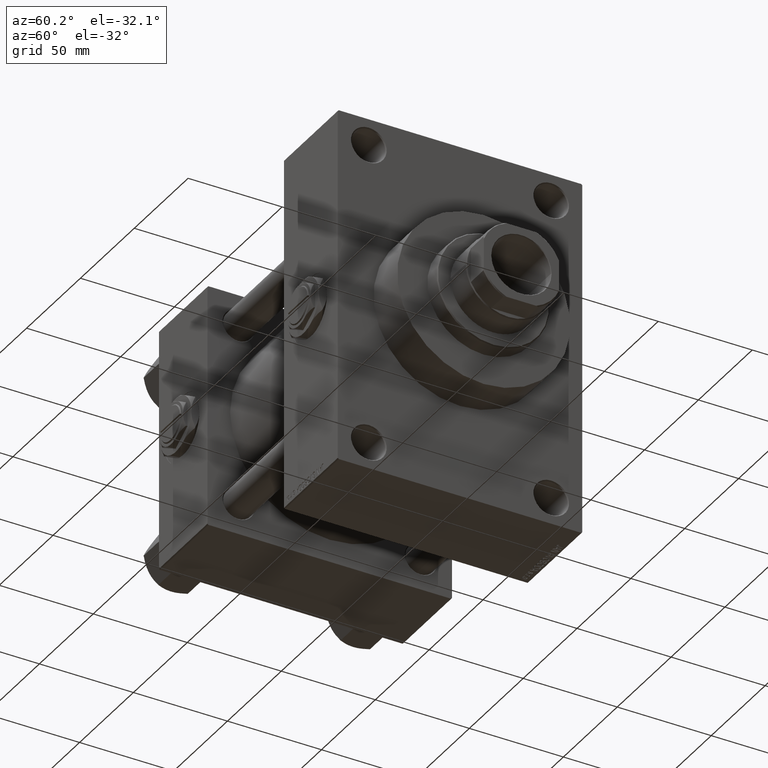
[diagram: clean part render]
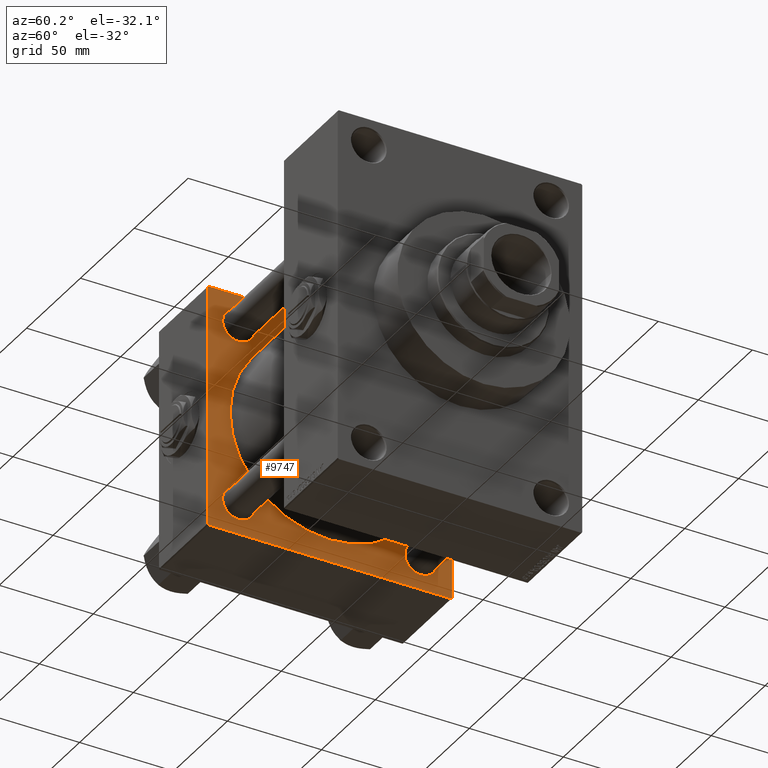
[diagram: same view with one face highlighted and labeled with its STEP entity id]
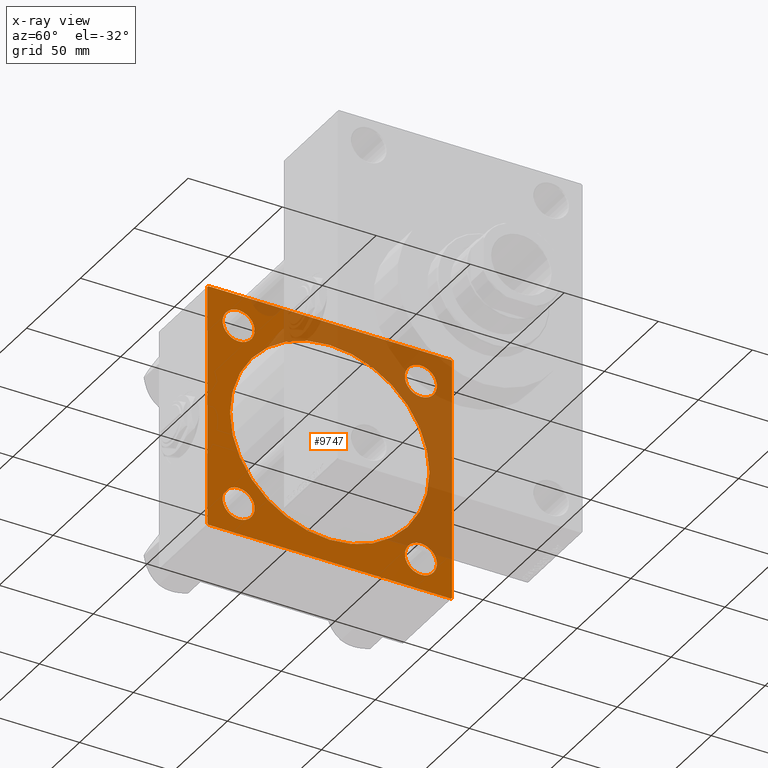
[diagram: x-ray of the same camera — body ghosted, the highlighted face saturated]
A machine part, auxiliary view. The second image highlights one B-rep face of the part: STEP entity #9747.
The next image is the same camera in x-ray: the body ghosted, the highlighted face saturated — about 42% of this face is hidden behind the body in this view.
In plain terms, the highlighted planar face has unit normal (-1, 0, 0).
Its self-contained STEP definition (entity closure, byte-faithful):
#68 = EDGE_LOOP ( 'NONE', ( #48559, #30694 ) ) ;
#267 = VECTOR ( 'NONE', #36901, 1000.000000000000114 ) ;
#706 = DIRECTION ( 'NONE',  ( 0.000000000000000000, -1.000000000000000000, -1.067522139062650425E-16 ) ) ;
#751 = VECTOR ( 'NONE', #706, 1000.000000000000000 ) ;
#847 = ORIENTED_EDGE ( 'NONE', *, *, #37595, .T. ) ;
#1075 = ORIENTED_EDGE ( 'NONE', *, *, #7280, .F. ) ;
#1376 = EDGE_CURVE ( 'NONE', #7370, #39609, #17095, .T. ) ;
#1531 = EDGE_LOOP ( 'NONE', ( #31114, #6490, #8621, #46389, #45648, #10969, #46787, #42049 ) ) ;
#1891 = CIRCLE ( 'NONE', #13938, 8.500000000000007105 ) ;
#2201 = CARTESIAN_POINT ( 'NONE',  ( 45.00000000000000000, -48.44999999999999574, 39.95000000000001705 ) ) ;
#2259 = CARTESIAN_POINT ( 'NONE',  ( 45.00000000000000000, 65.00000000000000000, 64.49999999999998579 ) ) ;
#2346 = VERTEX_POINT ( 'NONE', #5521 ) ;
#2987 = DIRECTION ( 'NONE',  ( 0.000000000000000000, 0.000000000000000000, 1.000000000000000000 ) ) ;
#3383 = CIRCLE ( 'NONE', #9057, 8.500000000000007105 ) ;
#4702 = DIRECTION ( 'NONE',  ( -1.000000000000000000, 0.000000000000000000, -0.000000000000000000 ) ) ;
#4882 = CARTESIAN_POINT ( 'NONE',  ( 45.00000000000000000, 48.45000000000000995, -39.95000000000000284 ) ) ;
#4936 = VERTEX_POINT ( 'NONE', #45603 ) ;
#5495 = EDGE_CURVE ( 'NONE', #28341, #31999, #3383, .T. ) ;
#5521 = CARTESIAN_POINT ( 'NONE',  ( 45.00000000000000000, 64.49999999999997158, -64.99999999999998579 ) ) ;
#5992 = LINE ( 'NONE', #14049, #44289 ) ;
#6455 = CARTESIAN_POINT ( 'NONE',  ( 45.00000000000000000, 48.45000000000000995, -56.95000000000002416 ) ) ;
#6490 = ORIENTED_EDGE ( 'NONE', *, *, #47140, .T. ) ;
#6652 = EDGE_CURVE ( 'NONE', #47131, #15026, #21118, .T. ) ;
#6764 = VECTOR ( 'NONE', #41480, 1000.000000000000000 ) ;
#7272 = CIRCLE ( 'NONE', #12146, 8.500000000000007105 ) ;
#7280 = EDGE_CURVE ( 'NONE', #15026, #47131, #36335, .T. ) ;
#7370 = VERTEX_POINT ( 'NONE', #30645 ) ;
#8260 = AXIS2_PLACEMENT_3D ( 'NONE', #41837, #13934, #45375 ) ;
#8621 = ORIENTED_EDGE ( 'NONE', *, *, #39358, .F. ) ;
#8928 = VERTEX_POINT ( 'NONE', #28559 ) ;
#9057 = AXIS2_PLACEMENT_3D ( 'NONE', #32373, #47710, #28589 ) ;
#9664 = CARTESIAN_POINT ( 'NONE',  ( 45.00000000000000000, 48.45000000000000995, 56.95000000000002416 ) ) ;
#9747 = ADVANCED_FACE ( 'NONE', ( #20768, #13466, #28806, #43918, #35890, #12733 ), #16508, .F. ) ;
#10969 = ORIENTED_EDGE ( 'NONE', *, *, #13918, .T. ) ;
#11187 = ORIENTED_EDGE ( 'NONE', *, *, #29451, .T. ) ;
#11302 = CARTESIAN_POINT ( 'NONE',  ( 45.00000000000000000, 48.45000000000000995, 48.45000000000001705 ) ) ;
#11663 = EDGE_LOOP ( 'NONE', ( #48670, #12356 ) ) ;
#11701 = CARTESIAN_POINT ( 'NONE',  ( 45.00000000000000000, -65.00000000000000000, 64.50000000000000000 ) ) ;
#11736 = AXIS2_PLACEMENT_3D ( 'NONE', #13988, #39923, #33113 ) ;
#11887 = CARTESIAN_POINT ( 'NONE',  ( 45.00000000000000000, 64.49999999999997158, 65.00000000000001421 ) ) ;
#11899 = EDGE_CURVE ( 'NONE', #31999, #28341, #40478, .T. ) ;
#12107 = CIRCLE ( 'NONE', #43477, 8.500000000000007105 ) ;
#12146 = AXIS2_PLACEMENT_3D ( 'NONE', #28941, #14100, #2987 ) ;
#12259 = CARTESIAN_POINT ( 'NONE',  ( 45.00000000000000000, -48.44999999999999574, -48.45000000000003126 ) ) ;
#12356 = ORIENTED_EDGE ( 'NONE', *, *, #5495, .T. ) ;
#12546 = CARTESIAN_POINT ( 'NONE',  ( 45.00000000000000000, 65.00000000000000000, -64.49999999999995737 ) ) ;
#12733 = FACE_OUTER_BOUND ( 'NONE', #1531, .T. ) ;
#13120 = VERTEX_POINT ( 'NONE', #4882 ) ;
#13466 = FACE_BOUND ( 'NONE', #32013, .T. ) ;
#13893 = VERTEX_POINT ( 'NONE', #14733 ) ;
#13918 = EDGE_CURVE ( 'NONE', #43117, #7370, #35119, .T. ) ;
#13934 = DIRECTION ( 'NONE',  ( 1.000000000000000000, -0.000000000000000000, 0.000000000000000000 ) ) ;
#13938 = AXIS2_PLACEMENT_3D ( 'NONE', #12259, #4702, #43712 ) ;
#13988 = CARTESIAN_POINT ( 'NONE',  ( 45.00000000000000000, 48.45000000000000995, 48.45000000000001705 ) ) ;
#14049 = CARTESIAN_POINT ( 'NONE',  ( 45.00000000000000000, 65.00000000000000000, 65.00000000000001421 ) ) ;
#14100 = DIRECTION ( 'NONE',  ( -1.000000000000000000, 0.000000000000000000, -0.000000000000000000 ) ) ;
#14402 = CARTESIAN_POINT ( 'NONE',  ( 45.00000000000000000, -48.44999999999999574, 48.45000000000003126 ) ) ;
#14482 = LINE ( 'NONE', #25047, #267 ) ;
#14733 = CARTESIAN_POINT ( 'NONE',  ( 45.00000000000000000, 48.45000000000000995, 39.95000000000000284 ) ) ;
#14825 = CARTESIAN_POINT ( 'NONE',  ( 45.00000000000000000, -48.44999999999999574, 56.95000000000003837 ) ) ;
#15026 = VERTEX_POINT ( 'NONE', #36848 ) ;
#15067 = VERTEX_POINT ( 'NONE', #9664 ) ;
#15426 = DIRECTION ( 'NONE',  ( -1.000000000000000000, 0.000000000000000000, -0.000000000000000000 ) ) ;
#15488 = VECTOR ( 'NONE', #31028, 1000.000000000000114 ) ;
#16028 = DIRECTION ( 'NONE',  ( 0.000000000000000000, 0.000000000000000000, 1.000000000000000000 ) ) ;
#16426 = LINE ( 'NONE', #11887, #15488 ) ;
#16508 = PLANE ( 'NONE',  #20330 ) ;
#16776 = AXIS2_PLACEMENT_3D ( 'NONE', #19197, #15426, #24455 ) ;
#17095 = LINE ( 'NONE', #36716, #24168 ) ;
#17485 = CARTESIAN_POINT ( 'NONE',  ( 45.00000000000000000, 0.000000000000000000, 0.000000000000000000 ) ) ;
#18607 = VERTEX_POINT ( 'NONE', #12546 ) ;
#18776 = AXIS2_PLACEMENT_3D ( 'NONE', #14402, #48614, #25963 ) ;
#19197 = CARTESIAN_POINT ( 'NONE',  ( 45.00000000000000000, 48.45000000000000995, -48.45000000000001705 ) ) ;
#19684 = DIRECTION ( 'NONE',  ( 0.000000000000000000, 0.000000000000000000, -1.000000000000000000 ) ) ;
#20330 = AXIS2_PLACEMENT_3D ( 'NONE', #17485, #36619, #32841 ) ;
#20626 = ORIENTED_EDGE ( 'NONE', *, *, #6652, .F. ) ;
#20703 = EDGE_CURVE ( 'NONE', #15067, #13893, #33543, .T. ) ;
#20768 = FACE_BOUND ( 'NONE', #25671, .T. ) ;
#21118 = CIRCLE ( 'NONE', #8260, 53.00000000000000711 ) ;
#23605 = LINE ( 'NONE', #31672, #751 ) ;
#23917 = VERTEX_POINT ( 'NONE', #42397 ) ;
#23991 = DIRECTION ( 'NONE',  ( 0.000000000000000000, -1.000000000000000000, -1.067522139062650425E-16 ) ) ;
#24168 = VECTOR ( 'NONE', #19684, 1000.000000000000000 ) ;
#24455 = DIRECTION ( 'NONE',  ( 0.000000000000000000, 0.000000000000000000, 1.000000000000000000 ) ) ;
#25047 = CARTESIAN_POINT ( 'NONE',  ( 45.00000000000000000, 65.00000000000000000, -64.49999999999995737 ) ) ;
#25126 = ORIENTED_EDGE ( 'NONE', *, *, #47096, .T. ) ;
#25499 = CIRCLE ( 'NONE', #41676, 8.500000000000007105 ) ;
#25671 = EDGE_LOOP ( 'NONE', ( #847, #25126 ) ) ;
#25963 = DIRECTION ( 'NONE',  ( 0.000000000000000000, 0.000000000000000000, 1.000000000000000000 ) ) ;
#26113 = CARTESIAN_POINT ( 'NONE',  ( 45.00000000000000000, -2.602085213965210642E-15, 0.000000000000000000 ) ) ;
#26333 = EDGE_CURVE ( 'NONE', #43906, #13120, #40081, .T. ) ;
#26622 = LINE ( 'NONE', #30154, #6764 ) ;
#27693 = VECTOR ( 'NONE', #35368, 1000.000000000000000 ) ;
#28341 = VERTEX_POINT ( 'NONE', #14825 ) ;
#28559 = CARTESIAN_POINT ( 'NONE',  ( 45.00000000000000000, 64.49999999999997158, 65.00000000000001421 ) ) ;
#28589 = DIRECTION ( 'NONE',  ( 0.000000000000000000, 0.000000000000000000, 1.000000000000000000 ) ) ;
#28644 = EDGE_CURVE ( 'NONE', #8928, #43117, #39842, .T. ) ;
#28806 = FACE_BOUND ( 'NONE', #11663, .T. ) ;
#28941 = CARTESIAN_POINT ( 'NONE',  ( 45.00000000000000000, -48.44999999999999574, -48.45000000000003126 ) ) ;
#29451 = EDGE_CURVE ( 'NONE', #13120, #43906, #25499, .T. ) ;
#29892 = DIRECTION ( 'NONE',  ( 0.000000000000000000, 0.000000000000000000, 1.000000000000000000 ) ) ;
#30154 = CARTESIAN_POINT ( 'NONE',  ( 45.00000000000000000, -64.49999999999994316, -65.00000000000000000 ) ) ;
#30645 = CARTESIAN_POINT ( 'NONE',  ( 45.00000000000000000, -65.00000000000000000, 64.50000000000000000 ) ) ;
#30694 = ORIENTED_EDGE ( 'NONE', *, *, #20703, .T. ) ;
#31028 = DIRECTION ( 'NONE',  ( 0.000000000000000000, -0.7071067811865474617, 0.7071067811865474617 ) ) ;
#31114 = ORIENTED_EDGE ( 'NONE', *, *, #34803, .F. ) ;
#31142 = CARTESIAN_POINT ( 'NONE',  ( 45.00000000000000000, -65.00000000000000000, -64.49999999999991473 ) ) ;
#31553 = EDGE_LOOP ( 'NONE', ( #1075, #20626 ) ) ;
#31672 = CARTESIAN_POINT ( 'NONE',  ( 45.00000000000000000, 65.00000000000000000, -64.99999999999998579 ) ) ;
#31999 = VERTEX_POINT ( 'NONE', #2201 ) ;
#32013 = EDGE_LOOP ( 'NONE', ( #34246, #11187 ) ) ;
#32373 = CARTESIAN_POINT ( 'NONE',  ( 45.00000000000000000, -48.44999999999999574, 48.45000000000003126 ) ) ;
#32841 = DIRECTION ( 'NONE',  ( -0.000000000000000000, 0.000000000000000000, 1.000000000000000000 ) ) ;
#32922 = VERTEX_POINT ( 'NONE', #39407 ) ;
#33113 = DIRECTION ( 'NONE',  ( 0.000000000000000000, 0.000000000000000000, 1.000000000000000000 ) ) ;
#33389 = CARTESIAN_POINT ( 'NONE',  ( 45.00000000000000000, -64.49999999999997158, 65.00000000000000000 ) ) ;
#33543 = CIRCLE ( 'NONE', #11736, 8.500000000000007105 ) ;
#34246 = ORIENTED_EDGE ( 'NONE', *, *, #26333, .T. ) ;
#34710 = AXIS2_PLACEMENT_3D ( 'NONE', #26113, #48271, #29892 ) ;
#34803 = EDGE_CURVE ( 'NONE', #2346, #32922, #23605, .T. ) ;
#35119 = LINE ( 'NONE', #11701, #27693 ) ;
#35368 = DIRECTION ( 'NONE',  ( -0.000000000000000000, -0.7071067811865672237, -0.7071067811865279218 ) ) ;
#35890 = FACE_BOUND ( 'NONE', #31553, .T. ) ;
#36335 = CIRCLE ( 'NONE', #34710, 53.00000000000000711 ) ;
#36619 = DIRECTION ( 'NONE',  ( -1.000000000000000000, 0.000000000000000000, -0.000000000000000000 ) ) ;
#36716 = CARTESIAN_POINT ( 'NONE',  ( 45.00000000000000000, -65.00000000000000000, 65.00000000000000000 ) ) ;
#36840 = VECTOR ( 'NONE', #23991, 1000.000000000000000 ) ;
#36848 = CARTESIAN_POINT ( 'NONE',  ( 45.00000000000000000, -2.602085213965210642E-15, 53.00000000000000711 ) ) ;
#36901 = DIRECTION ( 'NONE',  ( -0.000000000000000000, 0.7071067811865474617, 0.7071067811865474617 ) ) ;
#37595 = EDGE_CURVE ( 'NONE', #23917, #4936, #7272, .T. ) ;
#37624 = VERTEX_POINT ( 'NONE', #2259 ) ;
#37695 = EDGE_CURVE ( 'NONE', #13893, #15067, #12107, .T. ) ;
#38178 = CARTESIAN_POINT ( 'NONE',  ( 45.00000000000000000, 48.45000000000000995, -48.45000000000001705 ) ) ;
#39358 = EDGE_CURVE ( 'NONE', #37624, #18607, #5992, .T. ) ;
#39407 = CARTESIAN_POINT ( 'NONE',  ( 45.00000000000000000, -64.49999999999994316, -65.00000000000000000 ) ) ;
#39609 = VERTEX_POINT ( 'NONE', #31142 ) ;
#39842 = LINE ( 'NONE', #47150, #36840 ) ;
#39923 = DIRECTION ( 'NONE',  ( -1.000000000000000000, 0.000000000000000000, -0.000000000000000000 ) ) ;
#40081 = CIRCLE ( 'NONE', #16776, 8.500000000000007105 ) ;
#40478 = CIRCLE ( 'NONE', #18776, 8.500000000000007105 ) ;
#40721 = DIRECTION ( 'NONE',  ( 0.000000000000000000, 0.000000000000000000, -1.000000000000000000 ) ) ;
#41480 = DIRECTION ( 'NONE',  ( 0.000000000000000000, 0.7071067811865279218, -0.7071067811865671127 ) ) ;
#41676 = AXIS2_PLACEMENT_3D ( 'NONE', #38178, #45719, #41694 ) ;
#41694 = DIRECTION ( 'NONE',  ( 0.000000000000000000, 0.000000000000000000, 1.000000000000000000 ) ) ;
#41837 = CARTESIAN_POINT ( 'NONE',  ( 45.00000000000000000, -2.602085213965210642E-15, 0.000000000000000000 ) ) ;
#42049 = ORIENTED_EDGE ( 'NONE', *, *, #49091, .T. ) ;
#42397 = CARTESIAN_POINT ( 'NONE',  ( 45.00000000000000000, -48.44999999999999574, -56.95000000000003837 ) ) ;
#43117 = VERTEX_POINT ( 'NONE', #33389 ) ;
#43477 = AXIS2_PLACEMENT_3D ( 'NONE', #11302, #49297, #16028 ) ;
#43712 = DIRECTION ( 'NONE',  ( 0.000000000000000000, 0.000000000000000000, 1.000000000000000000 ) ) ;
#43906 = VERTEX_POINT ( 'NONE', #6455 ) ;
#43918 = FACE_BOUND ( 'NONE', #68, .T. ) ;
#44289 = VECTOR ( 'NONE', #40721, 1000.000000000000000 ) ;
#44806 = EDGE_CURVE ( 'NONE', #37624, #8928, #16426, .T. ) ;
#45375 = DIRECTION ( 'NONE',  ( 0.000000000000000000, 0.000000000000000000, 1.000000000000000000 ) ) ;
#45603 = CARTESIAN_POINT ( 'NONE',  ( 45.00000000000000000, -48.44999999999999574, -39.95000000000001705 ) ) ;
#45648 = ORIENTED_EDGE ( 'NONE', *, *, #28644, .T. ) ;
#45719 = DIRECTION ( 'NONE',  ( -1.000000000000000000, 0.000000000000000000, -0.000000000000000000 ) ) ;
#46389 = ORIENTED_EDGE ( 'NONE', *, *, #44806, .T. ) ;
#46787 = ORIENTED_EDGE ( 'NONE', *, *, #1376, .T. ) ;
#47096 = EDGE_CURVE ( 'NONE', #4936, #23917, #1891, .T. ) ;
#47131 = VERTEX_POINT ( 'NONE', #47957 ) ;
#47140 = EDGE_CURVE ( 'NONE', #2346, #18607, #14482, .T. ) ;
#47150 = CARTESIAN_POINT ( 'NONE',  ( 45.00000000000000000, 65.00000000000000000, 65.00000000000001421 ) ) ;
#47710 = DIRECTION ( 'NONE',  ( -1.000000000000000000, 0.000000000000000000, -0.000000000000000000 ) ) ;
#47957 = CARTESIAN_POINT ( 'NONE',  ( 45.00000000000000000, 3.888542821515762466E-15, -53.00000000000000711 ) ) ;
#48271 = DIRECTION ( 'NONE',  ( 1.000000000000000000, -0.000000000000000000, 0.000000000000000000 ) ) ;
#48559 = ORIENTED_EDGE ( 'NONE', *, *, #37695, .T. ) ;
#48614 = DIRECTION ( 'NONE',  ( -1.000000000000000000, 0.000000000000000000, -0.000000000000000000 ) ) ;
#48670 = ORIENTED_EDGE ( 'NONE', *, *, #11899, .T. ) ;
#49091 = EDGE_CURVE ( 'NONE', #39609, #32922, #26622, .T. ) ;
#49297 = DIRECTION ( 'NONE',  ( -1.000000000000000000, 0.000000000000000000, -0.000000000000000000 ) ) ;